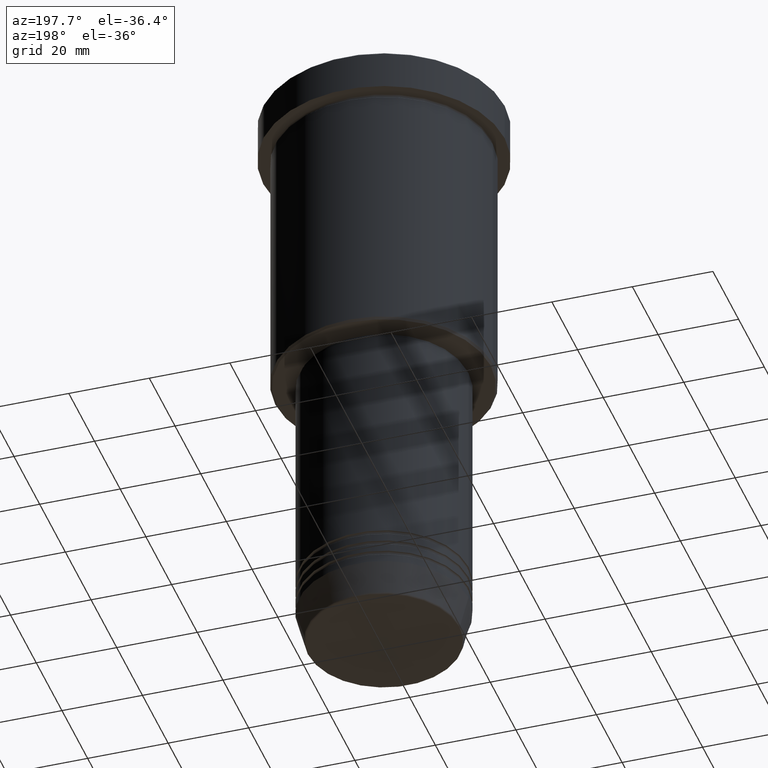
[diagram: clean part render]
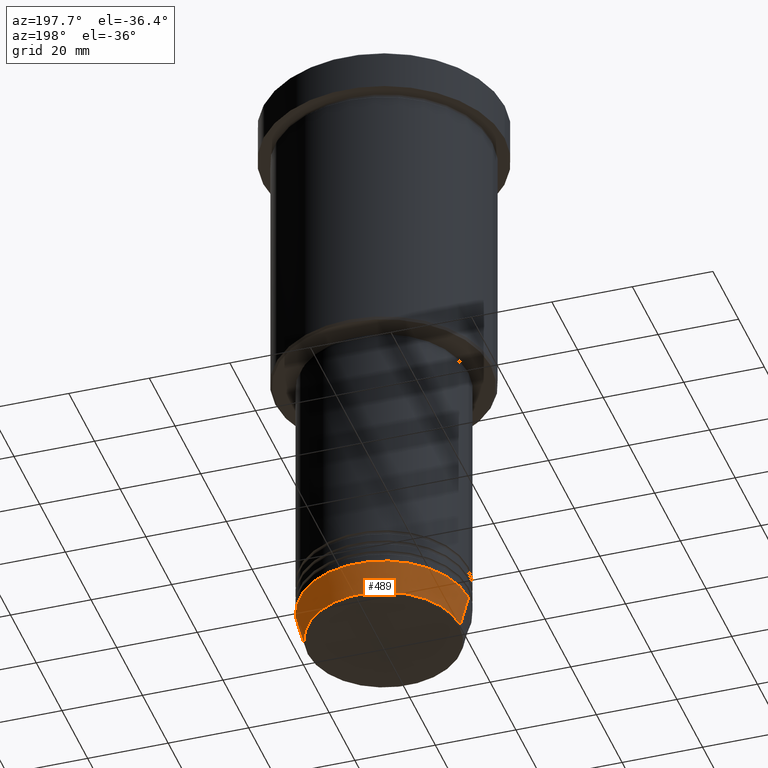
[diagram: same view with one face highlighted and labeled with its STEP entity id]
A machine part, auxiliary view. The second image highlights one B-rep face of the part: STEP entity #489.
In plain terms, the highlighted conical surface has half-angle 15 deg.
Its self-contained STEP definition (entity closure, byte-faithful):
#20 = ORIENTED_EDGE ( 'NONE', *, *, #335, .F. ) ;
#91 = CARTESIAN_POINT ( 'NONE',  ( 0.000000000000000000, 0.000000000000000000, -143.0000000000000000 ) ) ;
#119 = CARTESIAN_POINT ( 'NONE',  ( -21.00000000000000000, 2.571758278209441661E-15, -143.0000000000000000 ) ) ;
#131 = DIRECTION ( 'NONE',  ( -0.2588190451025209615, 3.169619151431767406E-17, 0.9659258262890682012 ) ) ;
#156 = CARTESIAN_POINT ( 'NONE',  ( 0.000000000000000000, 0.000000000000000000, -150.6294095225512422 ) ) ;
#169 = ORIENTED_EDGE ( 'NONE', *, *, #807, .F. ) ;
#173 = CARTESIAN_POINT ( 'NONE',  ( -21.00000000000000000, 2.571758278209441661E-15, -143.0000000000000000 ) ) ;
#195 = CARTESIAN_POINT ( 'NONE',  ( 21.00000000000000000, 0.000000000000000000, -143.0000000000000000 ) ) ;
#235 = VERTEX_POINT ( 'NONE', #1122 ) ;
#256 = AXIS2_PLACEMENT_3D ( 'NONE', #91, #987, #1074 ) ;
#290 = VECTOR ( 'NONE', #131, 1000.000000000000000 ) ;
#294 = CONICAL_SURFACE ( 'NONE', #256, 21.00000000000000000, 0.2617993877991496299 ) ;
#321 = CARTESIAN_POINT ( 'NONE',  ( 0.000000000000000000, 0.000000000000000000, -143.0000000000000000 ) ) ;
#328 = CARTESIAN_POINT ( 'NONE',  ( -18.95570587970607690, 2.446581365662756519E-15, -150.6294095225512422 ) ) ;
#335 = EDGE_CURVE ( 'NONE', #235, #928, #805, .T. ) ;
#473 = ORIENTED_EDGE ( 'NONE', *, *, #965, .T. ) ;
#489 = ADVANCED_FACE ( 'NONE', ( #638 ), #294, .T. ) ;
#506 = DIRECTION ( 'NONE',  ( 1.000000000000000000, 0.000000000000000000, 0.000000000000000000 ) ) ;
#517 = DIRECTION ( 'NONE',  ( -0.000000000000000000, -0.000000000000000000, 1.000000000000000000 ) ) ;
#638 = FACE_OUTER_BOUND ( 'NONE', #1112, .T. ) ;
#649 = VERTEX_POINT ( 'NONE', #328 ) ;
#664 = VECTOR ( 'NONE', #765, 1000.000000000000000 ) ;
#682 = LINE ( 'NONE', #119, #290 ) ;
#765 = DIRECTION ( 'NONE',  ( 0.2588190451025209615, 0.000000000000000000, 0.9659258262890682012 ) ) ;
#805 = LINE ( 'NONE', #195, #664 ) ;
#807 = EDGE_CURVE ( 'NONE', #928, #825, #907, .T. ) ;
#824 = DIRECTION ( 'NONE',  ( 1.000000000000000000, 0.000000000000000000, 0.000000000000000000 ) ) ;
#825 = VERTEX_POINT ( 'NONE', #173 ) ;
#887 = AXIS2_PLACEMENT_3D ( 'NONE', #321, #1057, #506 ) ;
#889 = CIRCLE ( 'NONE', #993, 18.95570587970607690 ) ;
#907 = CIRCLE ( 'NONE', #887, 21.00000000000000000 ) ;
#928 = VERTEX_POINT ( 'NONE', #1025 ) ;
#965 = EDGE_CURVE ( 'NONE', #649, #825, #682, .T. ) ;
#987 = DIRECTION ( 'NONE',  ( -0.000000000000000000, -0.000000000000000000, 1.000000000000000000 ) ) ;
#993 = AXIS2_PLACEMENT_3D ( 'NONE', #156, #517, #824 ) ;
#1025 = CARTESIAN_POINT ( 'NONE',  ( 21.00000000000000000, 0.000000000000000000, -143.0000000000000000 ) ) ;
#1057 = DIRECTION ( 'NONE',  ( -0.000000000000000000, -0.000000000000000000, 1.000000000000000000 ) ) ;
#1074 = DIRECTION ( 'NONE',  ( 1.000000000000000000, 0.000000000000000000, 0.000000000000000000 ) ) ;
#1094 = ORIENTED_EDGE ( 'NONE', *, *, #1162, .T. ) ;
#1112 = EDGE_LOOP ( 'NONE', ( #1094, #473, #169, #20 ) ) ;
#1122 = CARTESIAN_POINT ( 'NONE',  ( 18.95570587970607690, 0.000000000000000000, -150.6294095225512422 ) ) ;
#1162 = EDGE_CURVE ( 'NONE', #235, #649, #889, .T. ) ;